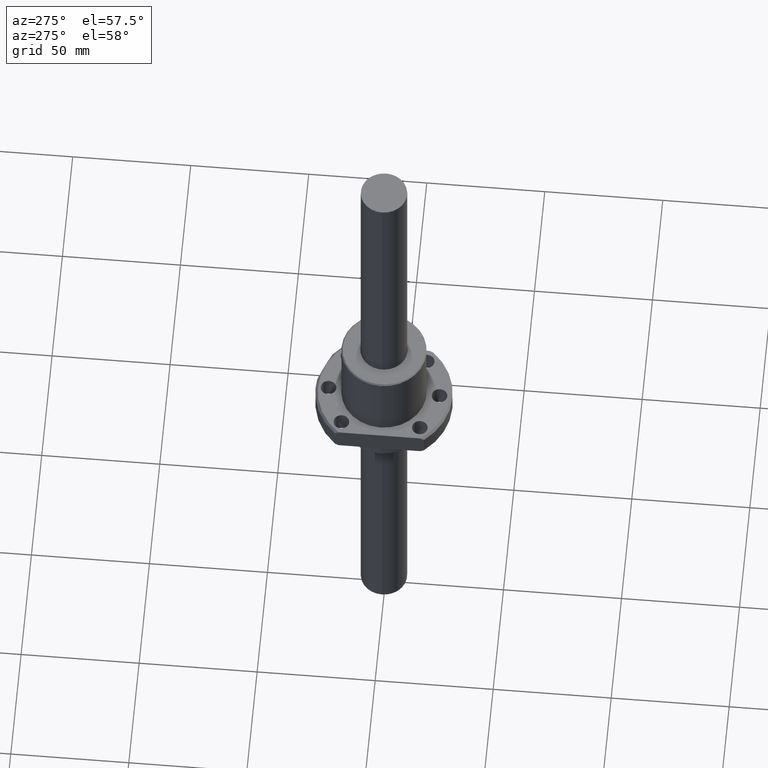
[diagram: clean part render]
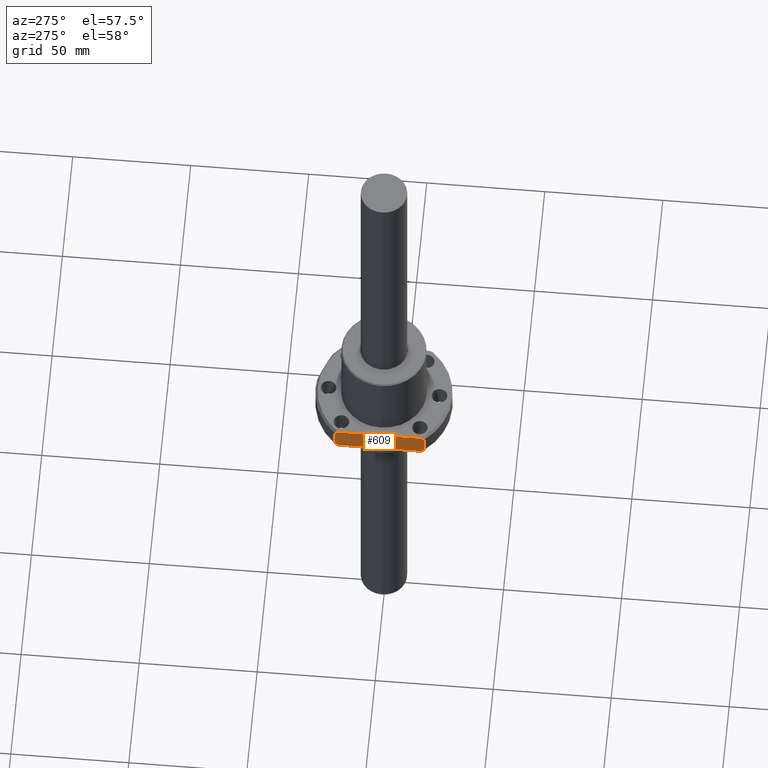
[diagram: same view with one face highlighted and labeled with its STEP entity id]
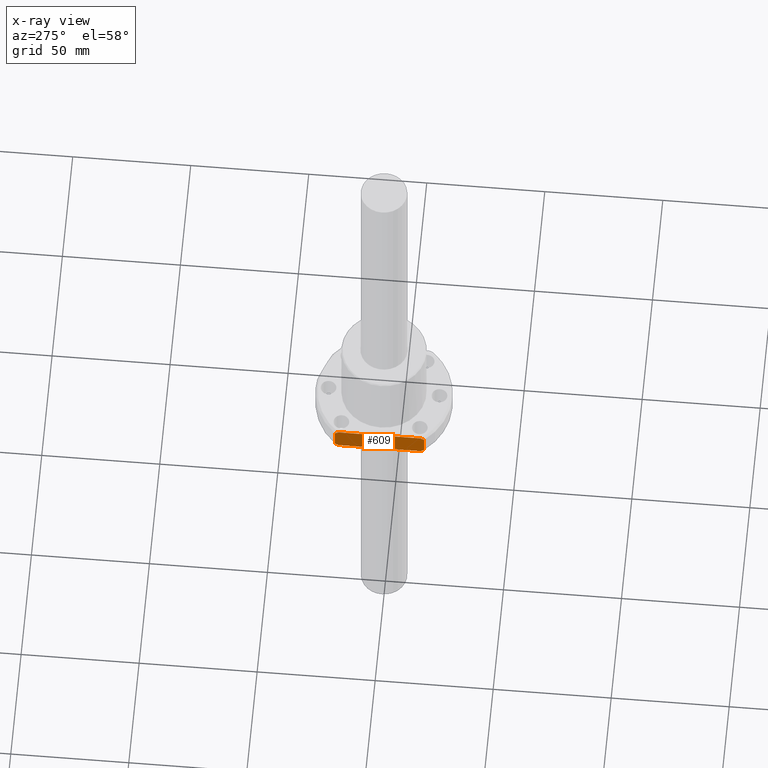
[diagram: x-ray of the same camera — body ghosted, the highlighted face saturated]
A machine part, auxiliary view. The second image highlights one B-rep face of the part: STEP entity #609.
The next image is the same camera in x-ray: the body ghosted, the highlighted face saturated — about 0% of this face is hidden behind the body in this view.
In plain terms, the highlighted planar face has unit normal (-1, 0, 0).
Its self-contained STEP definition (entity closure, byte-faithful):
#5 = CARTESIAN_POINT ( 'NONE',  ( 22.00000000000000000, -18.89444362784559700, -19.99999999989939800 ) ) ;
#16 = EDGE_CURVE ( 'NONE', #776, #954, #621, .T. ) ;
#17 = CARTESIAN_POINT ( 'NONE',  ( 22.00000000000000000, -18.89444362768589200, -11.99999999989595500 ) ) ;
#46 = B_SPLINE_CURVE_WITH_KNOTS ( 'NONE', 3,
 ( #1230, #847, #641, #450 ),
 .UNSPECIFIED., .F., .F.,
 ( 4, 4 ),
 ( 0.0000000000000000000, 0.001853585058447768400 ),
 .UNSPECIFIED. ) ;
#174 = CARTESIAN_POINT ( 'NONE',  ( 22.00000000000000000, -18.89444362768589200, -11.99999999989595500 ) ) ;
#210 = CARTESIAN_POINT ( 'NONE',  ( 22.00000000000000000, -18.37361340431812800, -20.33933783775025700 ) ) ;
#228 = DIRECTION ( 'NONE',  ( 0.0000000000000000000, 1.000000000000000000, 0.0000000000000000000 ) ) ;
#234 = VECTOR ( 'NONE', #1045, 1000.000000000000000 ) ;
#323 = ORIENTED_EDGE ( 'NONE', *, *, #1074, .T. ) ;
#324 = CARTESIAN_POINT ( 'NONE',  ( 22.00000000000000000, -17.32050807568878500, -11.00000000000000500 ) ) ;
#328 = B_SPLINE_CURVE_WITH_KNOTS ( 'NONE', 3,
 ( #1446, #1252, #1052, #866 ),
 .UNSPECIFIED., .F., .F.,
 ( 4, 4 ),
 ( 2.442211497868132800E-013, 0.001853585060531016400 ),
 .UNSPECIFIED. ) ;
#362 = VERTEX_POINT ( 'NONE', #174 ) ;
#375 = EDGE_CURVE ( 'NONE', #640, #362, #1072, .T. ) ;
#419 = CARTESIAN_POINT ( 'NONE',  ( 22.00000000000000000, -17.84916383594374200, -20.67297905841627800 ) ) ;
#430 = CARTESIAN_POINT ( 'NONE',  ( 22.00000000000000000, -0.004675628000003553800, -21.00000000000000000 ) ) ;
#450 = CARTESIAN_POINT ( 'NONE',  ( 21.99999999191315300, 18.88509238110721700, -20.00609177970081400 ) ) ;
#465 = VECTOR ( 'NONE', #650, 1000.000000000000000 ) ;
#532 = ORIENTED_EDGE ( 'NONE', *, *, #375, .T. ) ;
#558 = VERTEX_POINT ( 'NONE', #1519 ) ;
#560 = DIRECTION ( 'NONE',  ( 0.0000000000000000000, 1.000000000000000000, 0.0000000000000000000 ) ) ;
#598 = CARTESIAN_POINT ( 'NONE',  ( 22.00000000000000000, -17.32050807505906300, -21.00000000038953400 ) ) ;
#609 = ADVANCED_FACE ( 'NONE', ( #912 ), #1148, .T. ) ;
#613 = LINE ( 'NONE', #430, #644 ) ;
#621 = B_SPLINE_CURVE_WITH_KNOTS ( 'NONE', 3,
 ( #5, #210, #419, #598 ),
 .UNSPECIFIED., .F., .F.,
 ( 4, 4 ),
 ( 0.0000000000000000000, 0.001864744786621906500 ),
 .UNSPECIFIED. ) ;
#640 = VERTEX_POINT ( 'NONE', #324 ) ;
#641 = CARTESIAN_POINT ( 'NONE',  ( 22.00000000000000000, 18.36733551892265800, -20.34333110314690200 ) ) ;
#644 = VECTOR ( 'NONE', #228, 1000.000000000000000 ) ;
#647 = EDGE_CURVE ( 'NONE', #1584, #640, #1451, .T. ) ;
#650 = DIRECTION ( 'NONE',  ( -0.0000000000000000000, -0.0000000000000000000, -1.000000000000000000 ) ) ;
#742 = DIRECTION ( 'NONE',  ( 1.000000000000000000, 0.0000000000000000000, 0.0000000000000000000 ) ) ;
#776 = VERTEX_POINT ( 'NONE', #1274 ) ;
#777 = CARTESIAN_POINT ( 'NONE',  ( 21.99999999191315300, 18.88509238110721700, -20.00609177970081400 ) ) ;
#803 = ORIENTED_EDGE ( 'NONE', *, *, #647, .T. ) ;
#847 = CARTESIAN_POINT ( 'NONE',  ( 21.99999999918074400, 17.84599962450634400, -20.67493640601631500 ) ) ;
#854 = CARTESIAN_POINT ( 'NONE',  ( 22.00000000000000000, -18.89444362800000500, -16.00000000000000000 ) ) ;
#857 = AXIS2_PLACEMENT_3D ( 'NONE', #946, #742, #560 ) ;
#866 = CARTESIAN_POINT ( 'NONE',  ( 22.00000000000000000, 17.32050807568878500, -11.00000000000000500 ) ) ;
#878 = VERTEX_POINT ( 'NONE', #777 ) ;
#901 = EDGE_LOOP ( 'NONE', ( #1439, #323, #1373, #803, #532, #1027, #1844, #1697 ) ) ;
#912 = FACE_OUTER_BOUND ( 'NONE', #901, .T. ) ;
#946 = CARTESIAN_POINT ( 'NONE',  ( 22.00000000000000000, -18.89444362800000500, -21.00000000000000000 ) ) ;
#949 = EDGE_CURVE ( 'NONE', #1631, #878, #46, .T. ) ;
#954 = VERTEX_POINT ( 'NONE', #1374 ) ;
#1027 = ORIENTED_EDGE ( 'NONE', *, *, #1485, .T. ) ;
#1043 = LINE ( 'NONE', #854, #465 ) ;
#1045 = DIRECTION ( 'NONE',  ( 0.0000000000000000000, 0.0000000000000000000, 1.000000000000000000 ) ) ;
#1052 = CARTESIAN_POINT ( 'NONE',  ( 22.00000000000000000, 17.84599962265823300, -11.32506359229042100 ) ) ;
#1059 = DIRECTION ( 'NONE',  ( -0.0000000000000000000, -1.000000000000000000, -0.0000000000000000000 ) ) ;
#1072 = B_SPLINE_CURVE_WITH_KNOTS ( 'NONE', 3,
 ( #1349, #1537, #1711, #17 ),
 .UNSPECIFIED., .F., .F.,
 ( 4, 4 ),
 ( 6.181093260975899100E-013, 0.001864744787562278600 ),
 .UNSPECIFIED. ) ;
#1074 = EDGE_CURVE ( 'NONE', #878, #558, #1438, .T. ) ;
#1148 = PLANE ( 'NONE',  #857 ) ;
#1230 = CARTESIAN_POINT ( 'NONE',  ( 22.00000000000000000, 17.32050807875655400, -20.99999999810230400 ) ) ;
#1242 = CARTESIAN_POINT ( 'NONE',  ( 21.99999999121487800, 18.88509238192026300, -16.00001759100000200 ) ) ;
#1252 = CARTESIAN_POINT ( 'NONE',  ( 22.00000000000000000, 18.36733551756900700, -11.65666889598001000 ) ) ;
#1262 = CARTESIAN_POINT ( 'NONE',  ( 22.00000000000000000, -0.004675628000003553800, -11.00000000000000000 ) ) ;
#1274 = CARTESIAN_POINT ( 'NONE',  ( 22.00000000000000000, -18.89444362784559700, -19.99999999989939800 ) ) ;
#1349 = CARTESIAN_POINT ( 'NONE',  ( 22.00000000000000000, -17.32050807568878500, -11.00000000000000500 ) ) ;
#1352 = CARTESIAN_POINT ( 'NONE',  ( 22.00000000000000000, 17.32050807875655400, -20.99999999810230400 ) ) ;
#1373 = ORIENTED_EDGE ( 'NONE', *, *, #1536, .T. ) ;
#1374 = CARTESIAN_POINT ( 'NONE',  ( 22.00000000000000000, -17.32050807505906300, -21.00000000038953400 ) ) ;
#1438 = LINE ( 'NONE', #1242, #234 ) ;
#1439 = ORIENTED_EDGE ( 'NONE', *, *, #949, .T. ) ;
#1446 = CARTESIAN_POINT ( 'NONE',  ( 21.99999999719067700, 18.88509237748015600, -11.99390822194118700 ) ) ;
#1451 = LINE ( 'NONE', #1262, #1511 ) ;
#1485 = EDGE_CURVE ( 'NONE', #362, #776, #1043, .T. ) ;
#1511 = VECTOR ( 'NONE', #1059, 1000.000000000000000 ) ;
#1519 = CARTESIAN_POINT ( 'NONE',  ( 21.99999999719067700, 18.88509237748015600, -11.99390822194118700 ) ) ;
#1536 = EDGE_CURVE ( 'NONE', #558, #1584, #328, .T. ) ;
#1537 = CARTESIAN_POINT ( 'NONE',  ( 22.00000000000000000, -17.84916383676515700, -11.32702094210040200 ) ) ;
#1581 = CARTESIAN_POINT ( 'NONE',  ( 22.00000000000000000, 17.32050807568878500, -11.00000000000000500 ) ) ;
#1584 = VERTEX_POINT ( 'NONE', #1581 ) ;
#1624 = EDGE_CURVE ( 'NONE', #954, #1631, #613, .T. ) ;
#1631 = VERTEX_POINT ( 'NONE', #1352 ) ;
#1697 = ORIENTED_EDGE ( 'NONE', *, *, #1624, .T. ) ;
#1711 = CARTESIAN_POINT ( 'NONE',  ( 22.00000000000000000, -18.37361340512275700, -11.66066216276477800 ) ) ;
#1844 = ORIENTED_EDGE ( 'NONE', *, *, #16, .T. ) ;